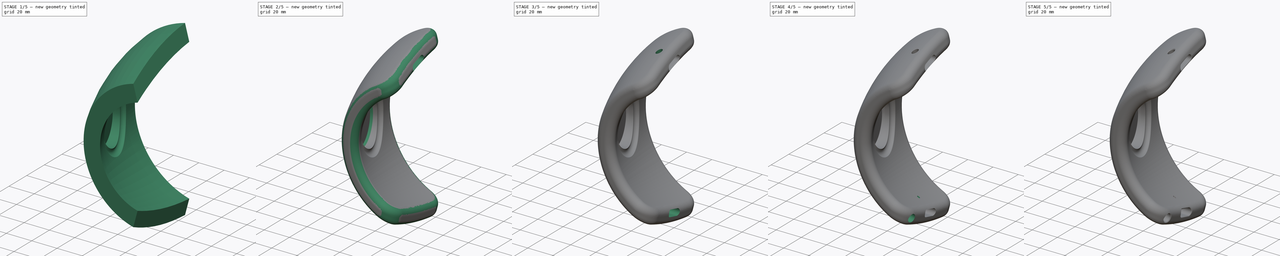
[diagram: build sequence overview — one tinted view per stage of 5, left to right]
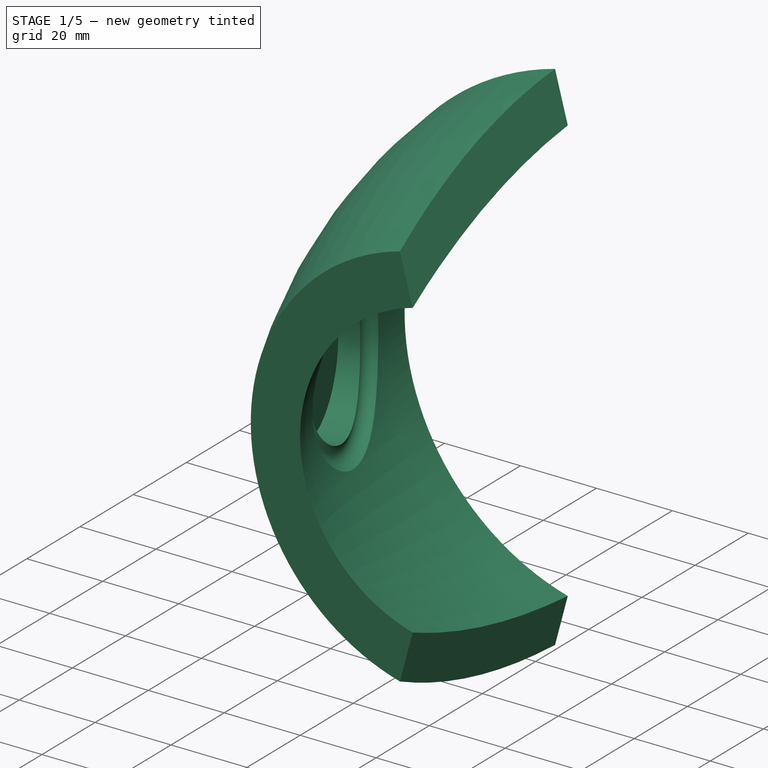
[diagram: stage 1 of 5 — iso view after this stage's code; geometry added in this stage tinted green]
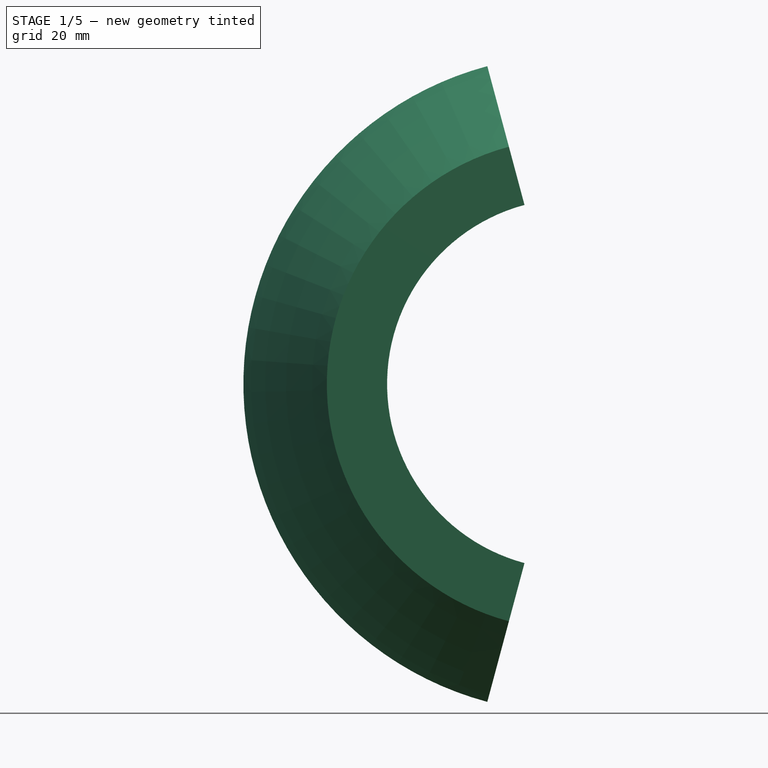
[diagram: stage 1 of 5 — front view after this stage's code; geometry added in this stage tinted green]
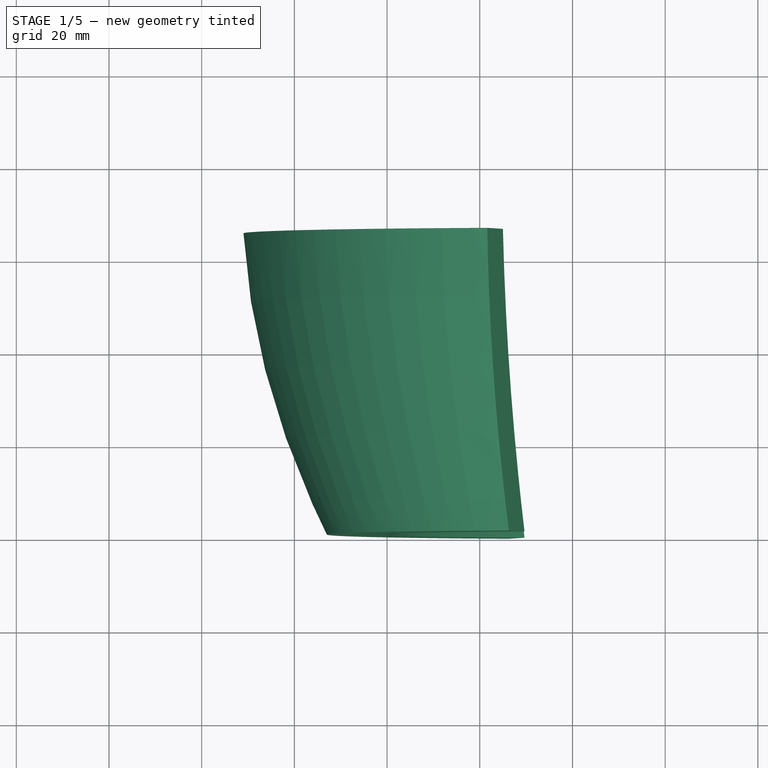
[diagram: stage 1 of 5 — top view after this stage's code; geometry added in this stage tinted green]
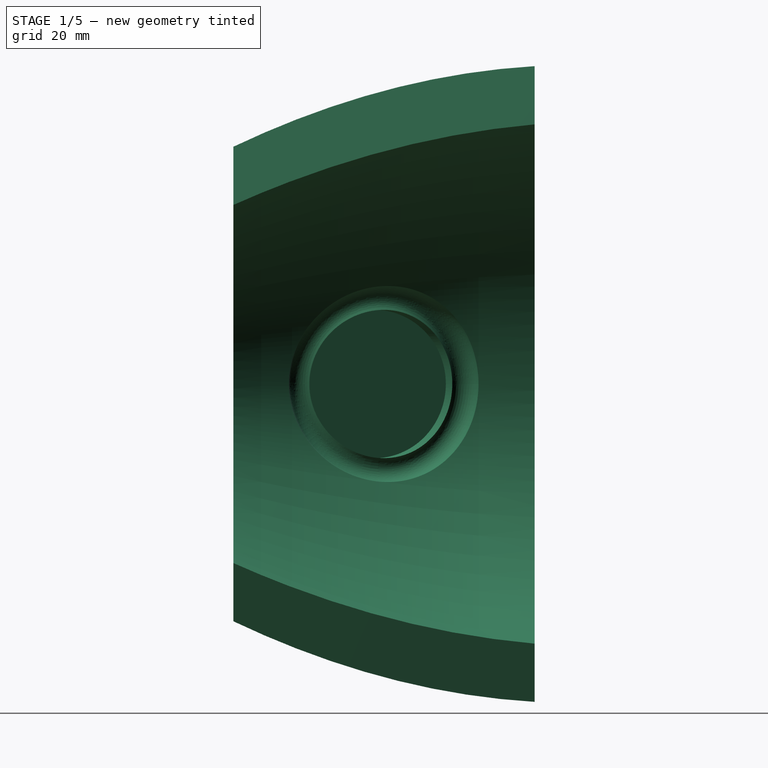
[diagram: stage 1 of 5 — right view after this stage's code; geometry added in this stage tinted green]
FCSTD DOCUMENT  (FreeCAD 0.17R13541 (Git))
Label: left_patch_v4_circularSeal
License: All rights reserved
LicenseURL: http://en.wikipedia.org/wiki/All_rights_reserved
objects: Sketcher::SketchObject×14, PartDesign::Pocket×7, PartDesign::Plane×5, PartDesign::Fillet×4, PartDesign::Mirrored×3, PartDesign::Chamfer×2, PartDesign::Revolution×1, PartDesign::Line×1, PartDesign::Pad×1, PartDesign::SubtractivePipe×1, PartDesign::SubtractiveLoft×1, PartDesign::Body×1
note: 52 computed .brp shape members not serialized (recipe doc carries the construction recipe); baked Part::Feature solids carry a one-line shape summary decoded from their .brp

FEATURE [Sketcher::SketchObject] Sketch
  MapMode = 5
  Support = -> [XY_Plane]
  sketch-geometry (14):
    g0: LineSegment StartX=-53 StartY=0 StartZ=0 EndX=-40 EndY=0 EndZ=0
    g1: LineSegment StartX=-71 StartY=65 StartZ=0 EndX=-58 EndY=65 EndZ=0
    g2: Circle [constr] CenterX=-71 CenterY=65 CenterZ=0 NormalX=0 NormalY=0 NormalZ=1 AngleXU=0 Radius=1
    g3: Circle [constr] CenterX=-69 CenterY=32.5 CenterZ=0 NormalX=0 NormalY=0 NormalZ=1 AngleXU=0 Radius=1
    g4: Circle [constr] CenterX=-53 CenterY=0 CenterZ=0 NormalX=0 NormalY=0 NormalZ=1 AngleXU=0 Radius=1
    g5: BSplineCurve PolesCount=3 KnotsCount=2 Degree=2 IsPeriodic=0
    g6: GeomPoint [constr] X=-71 Y=65 Z=0
    g7: GeomPoint [constr] X=-53 Y=0 Z=0
    g8: Circle [constr] CenterX=-58 CenterY=65 CenterZ=0 NormalX=0 NormalY=0 NormalZ=1 AngleXU=0 Radius=1
    g9: Circle [constr] CenterX=-55 CenterY=32.5 CenterZ=0 NormalX=0 NormalY=0 NormalZ=1 AngleXU=0 Radius=1
    g10: Circle [constr] CenterX=-40 CenterY=0 CenterZ=0 NormalX=0 NormalY=0 NormalZ=1 AngleXU=0 Radius=1
    g11: BSplineCurve PolesCount=3 KnotsCount=2 Degree=2 IsPeriodic=0
    g12: GeomPoint [constr] X=-58 Y=65 Z=0
    g13: GeomPoint [constr] X=-40 Y=0 Z=0
  constraints (32):
    c: Horizontal(g0)
    c: Horizontal(g1)
    c: Coincident(g2,g1)
    c: Radius(g2) = 1
    c: Equal(g2,g3)
    c: Equal(g2,g4)
    c: Coincident(g4,g0)
    c: InternalAlignment(g2,g5)
    c: InternalAlignment(g3,g5)
    c: InternalAlignment(g4,g5)
    c: InternalAlignment(g6,g5)
    c: InternalAlignment(g7,g5)
    c: Coincident(g8,g1)
    c: Radius(g8) = 1
    c: Equal(g8,g9)
    c: Equal(g8,g10)
    c: Coincident(g10,g0)
    c: InternalAlignment(g8,g11)
    c: InternalAlignment(g9,g11)
    c: InternalAlignment(g10,g11)
    c: InternalAlignment(g12,g11)
    c: InternalAlignment(g13,g11)
    c: DistanceX(g1,g1) = 13  'upper thickness'
    c: DistanceX(g0,g0) = 13  'lower thickness'
    c: DistanceY(g0,g1) = 65
    c: DistanceY(g0,g-1) = 0
    c: DistanceY(g0,g9) = 32.5
    c: DistanceY(g0,g3) = 32.5
    c: DistanceX(g0,g-1) = 40  'lower radius'
    c: DistanceX(g3,g9) = 14  'middle thickness'
    c: DistanceX(g9,g0) = 15  'middle radius difference'
    c: DistanceX(g1,g0) = 18  'upper radius difference'
FEATURE [PartDesign::Revolution] Revolution
  Angle = 150
  Axis = (0,1,0)
  Base = (0,0,0)
  Midplane = true
  Profile = -> Sketch
  ReferenceAxis = -> Sketch [V_Axis]
FEATURE [PartDesign::Line] DatumLine
  AttacherType = Attacher::AttachEngineLine
  AttachmentOffset = pos=(47,0,0) rot=(0,1,0;0.279253rad)
  MapMode = 29
  Placement = pos=(0,47,0) rot=(0.470251,0.624045,0.624045;2.26246rad)
  Support = -> [X_Axis]
FEATURE [PartDesign::Plane] DatumPlane001
  AttachmentOffset = pos=(0,0,-45) rot=(0,0,1;0rad)
  MapMode = 2
  Placement = pos=(-43.2568,34.5963,0) rot=(0.470251,0.624045,0.624045;2.26246rad)
  Support = -> [DatumLine]
FEATURE [Sketcher::SketchObject] Sketch017
  MapMode = 5
  Placement = pos=(-43.2568,34.5963,0) rot=(0.470251,0.624045,0.624045;2.26246rad)
  Support = -> [DatumPlane001]
  sketch-geometry (1):
    g0: Circle CenterX=0 CenterY=0 CenterZ=0 NormalX=0 NormalY=0 NormalZ=1 AngleXU=0 Radius=19
  constraints (2):
    c: Coincident(g0,g-1)
    c: Radius(g0) = 19
FEATURE [PartDesign::Pad] Pad001
  BaseFeature = -> Revolution
  Length = 20
  Length2 = 100
  Profile = -> Sketch017
  Type = 3
  UpToFace = -> Revolution [Face3]
FEATURE [Sketcher::SketchObject] Sketch018
  ExternalGeometry = -> [DatumLine]
  MapMode = 5
  Support = -> [XY_Plane]
  sketch-geometry (12):
    g0: LineSegment [constr] StartX=-50.16 StartY=32.6169 StartZ=0 EndX=-44.5921 EndY=13.1994 EndZ=0
    g1: LineSegment [constr] StartX=-44.5921 StartY=13.1994 StartZ=0 EndX=-46.034 EndY=12.7859 EndZ=0
    g2: LineSegment [constr] StartX=-46.034 StartY=12.7859 StartZ=0 EndX=-50.1686 EndY=27.2048 EndZ=0
    g3: LineSegment [constr] StartX=-50.1686 StartY=27.2048 StartZ=0 EndX=-51.1298 EndY=26.9292 EndZ=0
    g4: LineSegment [constr] StartX=-51.1298 StartY=26.9292 StartZ=0 EndX=-51.6271 EndY=28.6634 EndZ=0
    g5: LineSegment [constr] StartX=-51.6271 StartY=28.6634 StartZ=0 EndX=-41.0277 EndY=31.7028 EndZ=0
    g6: LineSegment [constr] StartX=-41.0277 StartY=31.7028 StartZ=0 EndX=-36.3958 EndY=15.5496 EndZ=0
    g7: LineSegment [constr] StartX=-36.3958 StartY=15.5496 StartZ=0 EndX=-44.5921 EndY=13.1994 EndZ=0
    g8: ArcOfCircle CenterX=-45.6792 CenterY=15.1763 CenterZ=0 NormalX=0 NormalY=0 NormalZ=1 AngleXU=0 Radius=3.25 StartAngle=1.85005 EndAngle=4.99164
    g9: LineSegment StartX=-46.575 StartY=18.3004 StartZ=0 EndX=-32.1561 EndY=22.435 EndZ=0
    g10: LineSegment StartX=-32.1561 StartY=22.435 StartZ=0 EndX=-30.3644 EndY=16.1868 EndZ=0
    g11: LineSegment StartX=-30.3644 StartY=16.1868 StartZ=0 EndX=-44.7833 EndY=12.0522 EndZ=0
  constraints (33):
    c: PointOnObject(g0,g-3)
    c: Perpendicular(g-3,g0)
    c: Distance(g0) = 20.2
    c: Coincident(g0,g1)
    c: Coincident(g1,g2)
    c: Coincident(g2,g3)
    c: Coincident(g3,g4)
    c: Coincident(g4,g5)
    c: Coincident(g5,g6)
    c: Coincident(g6,g7)
    c: Coincident(g7,g1)
    c: Perpendicular(g0,g1)
    c: Perpendicular(g0,g3)
    c: Perpendicular(g0,g5)
    c: Perpendicular(g0,g7)
    c: Parallel(g6,g0)
    c: Parallel(g2,g0)
    c: Parallel(g4,g0)
    c: Distance(g1) = 1.5
    c: Distance(g2) = 15
    c: Distance(g3) = 1
    c: DistanceX(g0) = -50.16
    c: Radius(g8) = 3.25  'circular seal diameter'
    c: Distance(g8,g2) = 1  'circular seal dept'
    c: Distance(g8,g-3) = 18  'ring diameter'
    c: Coincident(g9,g10)
    c: Coincident(g10,g11)
    c: Tangent(g8,g9) = 1.5708
    c: Tangent(g8,g11) = 1.5708
    c: Parallel(g9,g-3)
    c: Parallel(g11,g-3)
    c: Distance(g11) = 15
    c: Perpendicular(g-3,g10)
FEATURE [PartDesign::SubtractivePipe] SubtractivePipe
  AuxilleryCurvelinear = true
  AuxillerySpineTangent = false
  BaseFeature = -> Pad001
  Binormal = (0,0,0)
  Mode = 0
  Profile = -> Sketch018
  Refine = true
  Spine = -> Pad001 [Edge13,Edge14]
  SpineTangent = false
  Transformation = 0
  Transition = 0
FEATURE [Sketcher::SketchObject] Sketch019
  MapMode = 5
  Placement = pos=(-43.2568,34.5963,0) rot=(0.470251,0.624045,0.624045;2.26246rad)
  Support = -> [DatumPlane001]
  sketch-geometry (1):
    g0: Circle CenterX=0 CenterY=0 CenterZ=0 NormalX=0 NormalY=0 NormalZ=1 AngleXU=0 Radius=16
  constraints (2):
    c: Coincident(g0,g-1)
    c: Radius(g0) = 16
FEATURE [PartDesign::Pocket] Pocket007
  BaseFeature = -> SubtractivePipe
  Length = 30
  Length2 = 100
  Midplane = true
  Profile = -> Sketch019
  Type = 0
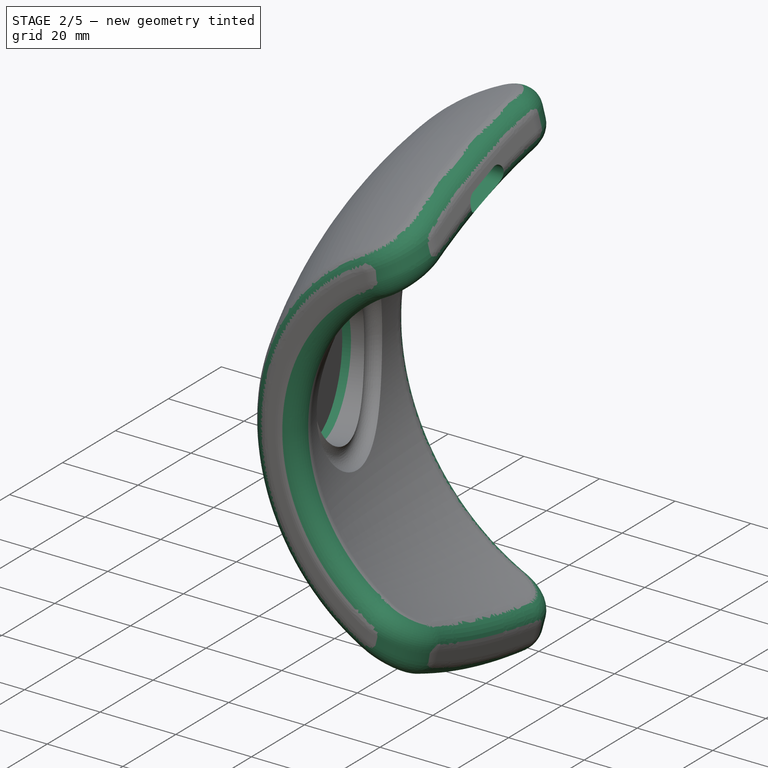
[diagram: stage 2 of 5 — iso view after this stage's code; geometry added in this stage tinted green]
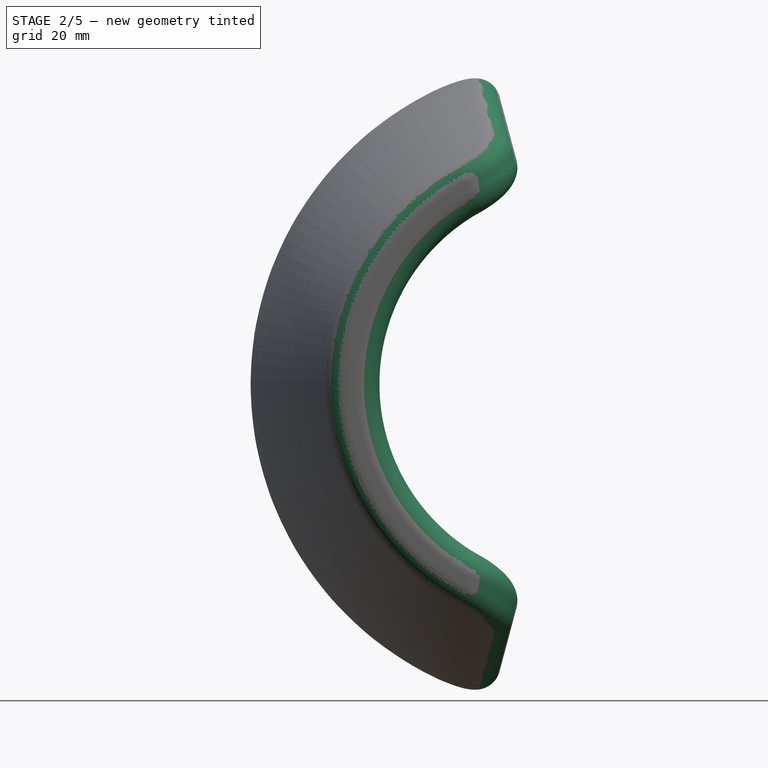
[diagram: stage 2 of 5 — front view after this stage's code; geometry added in this stage tinted green]
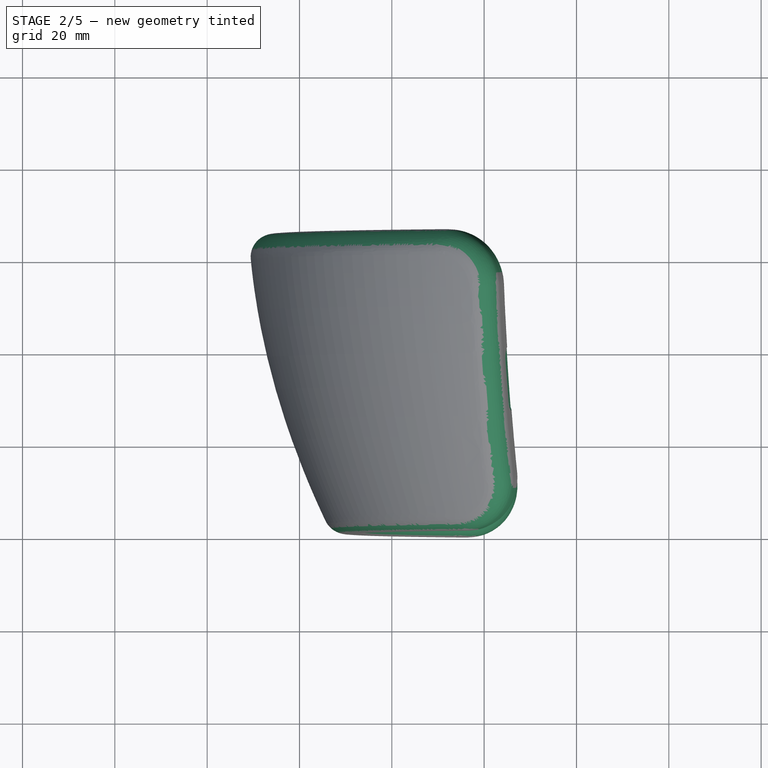
[diagram: stage 2 of 5 — top view after this stage's code; geometry added in this stage tinted green]
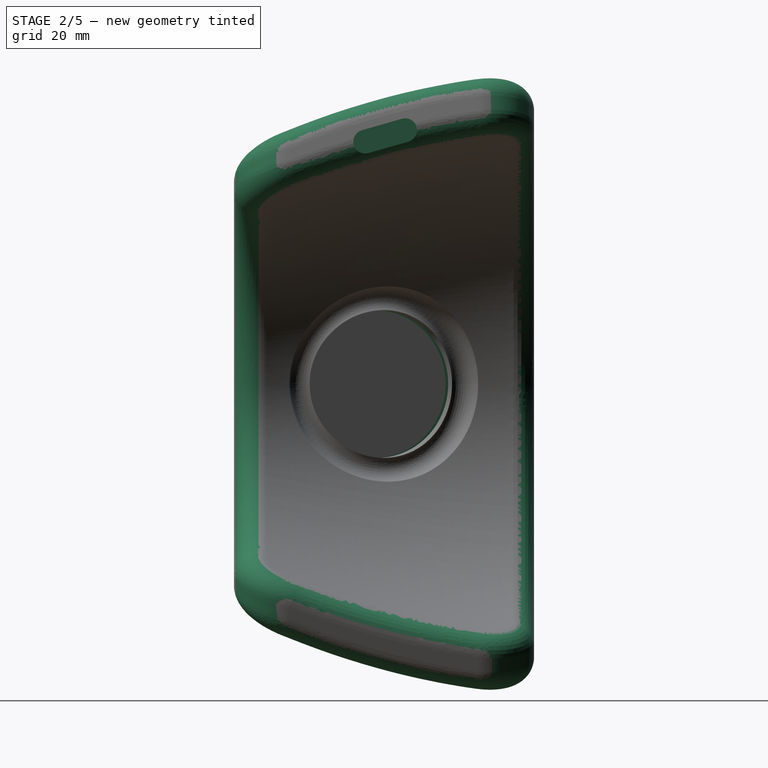
[diagram: stage 2 of 5 — right view after this stage's code; geometry added in this stage tinted green]
FEATURE [Sketcher::SketchObject] Sketch020
  ExternalGeometry = -> [DatumLine]
  MapMode = 5
  Placement = pos=(-45.2226,-12.9674,0) rot=(0.470251,0.624045,0.624045;2.26246rad)
  Support = -> [Pocket007]
  sketch-geometry (2):
    g0: Circle CenterX=45.1793 CenterY=0 CenterZ=0 NormalX=0 NormalY=0 NormalZ=1 AngleXU=0 Radius=16
    g1: Circle CenterX=45.1793 CenterY=0 CenterZ=0 NormalX=0 NormalY=0 NormalZ=1 AngleXU=0 Radius=18
  constraints (4):
    c: Coincident(g0,g-3)
    c: Coincident(g1,g0)
    c: Radius(g0) = 16
    c: Radius(g1) = 18
FEATURE [PartDesign::Pocket] Pocket008
  BaseFeature = -> Pocket007
  Length = 2
  Length2 = 2
  Profile = -> Sketch020
  Type = 4
FEATURE [PartDesign::Plane] DatumPlane
  AttachmentOffset = pos=(0,0,-9) rot=(0,0,1;0rad)
  MapMode = 5
  Placement = pos=(-9,1e-12,-1e-12) rot=(0.57735,0.57735,0.57735;2.0944rad)
  Support = -> [YZ_Plane]
FEATURE [Sketcher::SketchObject] Sketch003
  MapMode = 5
  Placement = pos=(-9,1e-12,-1e-12) rot=(0.57735,0.57735,0.57735;2.0944rad)
  Support = -> [DatumPlane]
  sketch-geometry (4):
    g0: ArcOfCircle CenterX=28.43 CenterY=52.5 CenterZ=0 NormalX=0 NormalY=0 NormalZ=1 AngleXU=0 Radius=2.575 StartAngle=1.85005 EndAngle=4.99164
    g1: ArcOfCircle CenterX=37.0814 CenterY=54.9807 CenterZ=0 NormalX=0 NormalY=0 NormalZ=1 AngleXU=0 Radius=2.575 StartAngle=4.99164 EndAngle=8.13323
    g2: LineSegment StartX=29.1398 StartY=50.0248 StartZ=0 EndX=37.7911 EndY=52.5055 EndZ=0
    g3: LineSegment StartX=27.7202 StartY=54.9752 StartZ=0 EndX=36.3716 EndY=57.456 EndZ=0
  constraints (10):
    c: Tangent(g0,g3) = 1.5708
    c: Tangent(g0,g2) = -1.5708
    c: Tangent(g2,g1) = -1.5708
    c: Tangent(g3,g1) = 1.5708
    c: Angle(g3,g-1) = -0.279253
    c: Distance(g0,g1) = 9
    c: Distance(g1,g1) = 5.15
    c: Parallel(g3,g2)
    c: DistanceX(g0) = 28.43
    c: DistanceY(g-1,g0) = 52.5
FEATURE [PartDesign::Plane] DatumPlane002
  AttachmentOffset = pos=(0,0,-18) rot=(0,0,1;0rad)
  MapMode = 4
  Placement = pos=(4.96147,29.6973,0) rot=(-0.515639,-0.684276,-0.515639;1.9414rad)
  Support = -> [DatumLine]
FEATURE [Sketcher::SketchObject] Sketch027
  MapMode = 5
  Placement = pos=(4.96147,29.6973,0) rot=(-0.515639,-0.684276,-0.515639;1.9414rad)
  Support = -> [DatumPlane002]
  sketch-geometry (1):
    g0: Circle CenterX=0 CenterY=-60.4737 CenterZ=0 NormalX=0 NormalY=0 NormalZ=1 AngleXU=0 Radius=1.5
  constraints (2):
    c: PointOnObject(g0,g-2)
    c: Radius(g0) = 1.5
FEATURE [PartDesign::Plane] DatumPlane003
  AttachmentOffset = pos=(0,0,0) rot=(0,-1,0;0.698132rad)
  MapMode = 5
  Placement = pos=(0,0,0) rot=(0,-1,0;0.698132rad)
  Support = -> [XY_Plane]
FEATURE [Sketcher::SketchObject] Sketch028
  MapMode = 5
  Placement = pos=(0,0,0) rot=(0,-1,0;0.698132rad)
  Support = -> [DatumPlane003]
  sketch-geometry (1):
    g0: Circle CenterX=-50 CenterY=8.5 CenterZ=0 NormalX=0 NormalY=0 NormalZ=1 AngleXU=0 Radius=1.5
  constraints (3):
    c: Radius(g0) = 1.5
    c: DistanceY(g-1,g0) = 8.5
    c: DistanceX(g0,g-1) = 50
FEATURE [PartDesign::Plane] DatumPlane004
  AttachmentOffset = pos=(0,0,4.5) rot=(-0.95157,-0.300144,-0.06654;0.457789rad)
  MapMode = 5
  Placement = pos=(0,0,4.5) rot=(-0.95157,-0.300144,-0.06654;0.457789rad)
  Support = -> [XY_Plane]
FEATURE [Sketcher::SketchObject] Sketch030
  MapMode = 5
  Placement = pos=(0,0,4.5) rot=(-0.95157,-0.300144,-0.06654;0.457789rad)
  Support = -> [DatumPlane004]
  sketch-geometry (1):
    g0: Circle CenterX=-49 CenterY=7 CenterZ=0 NormalX=0 NormalY=0 NormalZ=1 AngleXU=0 Radius=1.5
  constraints (3):
    c: Radius(g0) = 1.5
    c: DistanceY(g-1,g0) = 7
    c: DistanceX(g0,g-1) = 49
FEATURE [PartDesign::Fillet] Fillet020
  Base = -> Pocket008 [Edge7,Edge6,Edge9,Edge10]
  BaseFeature = -> Pocket008
  Radius = 12
FEATURE [PartDesign::Fillet] Fillet  label="Vorderkannte innen"
  Base = -> Fillet020 [Edge11,Edge1]
  BaseFeature = -> Fillet020
  Radius = 5
FEATURE [PartDesign::Pocket] Pocket  label="Kabelzug"
  BaseFeature = -> Fillet
  Length = 22
  Length2 = 100
  Profile = -> Sketch003
  Type = 0
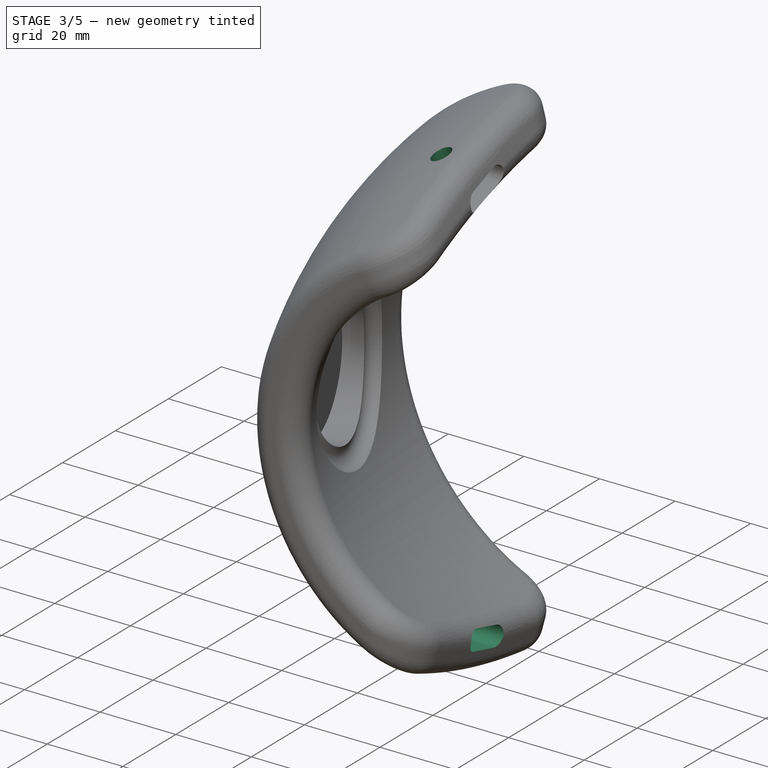
[diagram: stage 3 of 5 — iso view after this stage's code; geometry added in this stage tinted green]
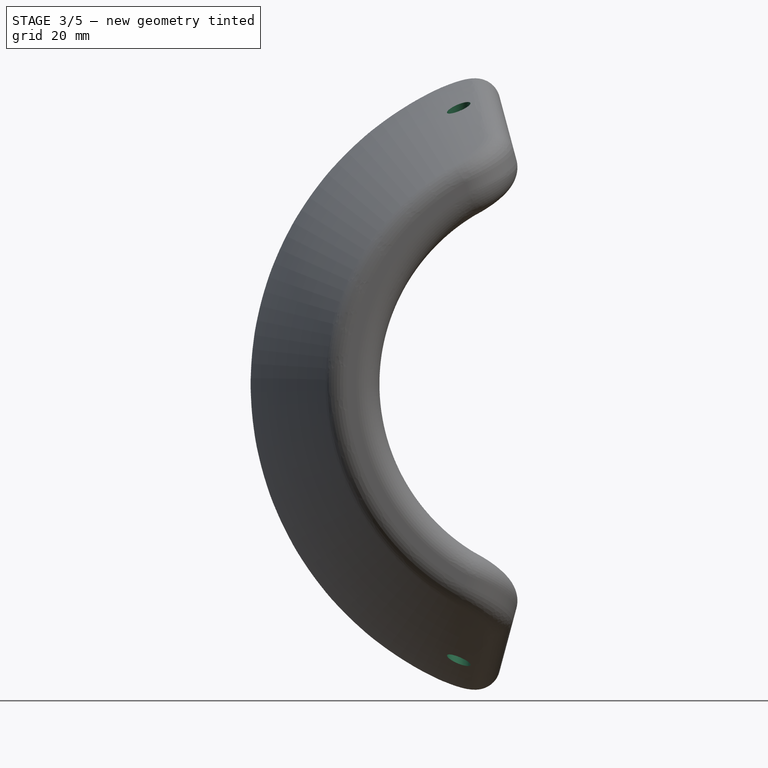
[diagram: stage 3 of 5 — front view after this stage's code; geometry added in this stage tinted green]
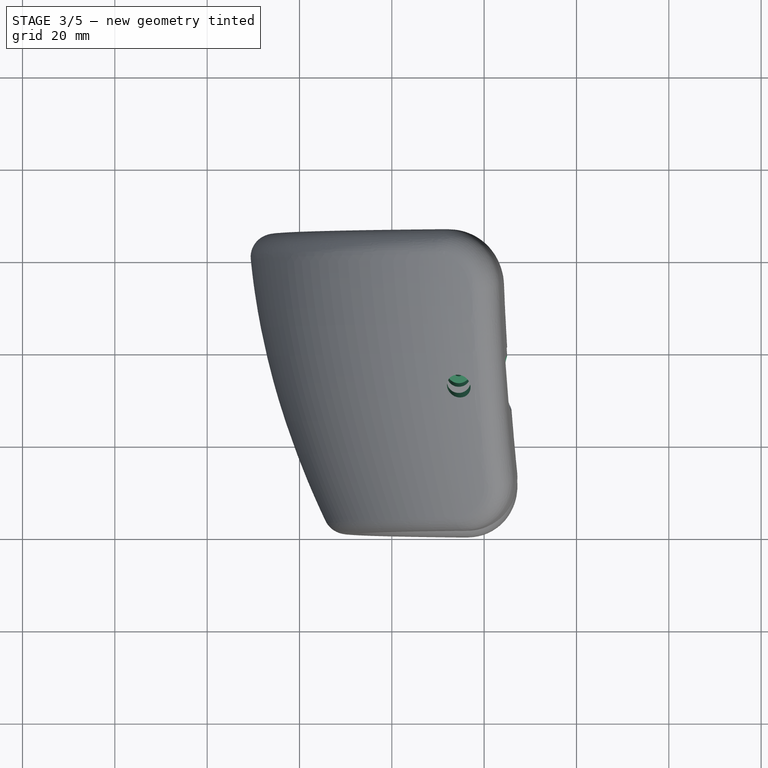
[diagram: stage 3 of 5 — top view after this stage's code; geometry added in this stage tinted green]
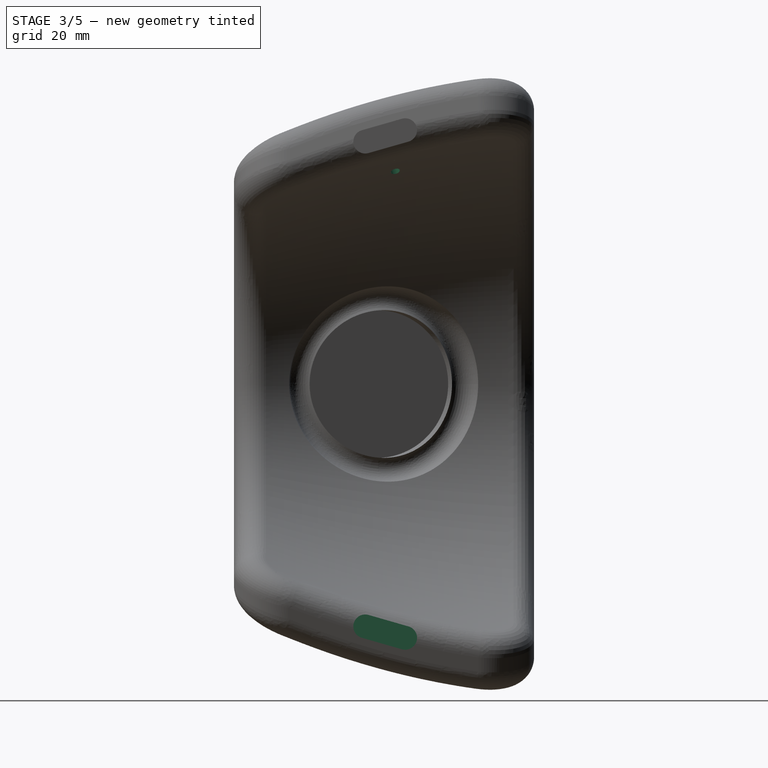
[diagram: stage 3 of 5 — right view after this stage's code; geometry added in this stage tinted green]
FEATURE [Sketcher::SketchObject] Sketch022
  ExternalGeometry = -> [Pocket]
  MapMode = 5
  Placement = pos=(-6e-12,-11.0406,38.5032) rot=(1,0,0;0.279253rad)
  Support = -> [Pocket]
  sketch-geometry (1):
    g0: Circle CenterX=-25.5 CenterY=46.2996 CenterZ=0 NormalX=0 NormalY=0 NormalZ=1 AngleXU=0 Radius=2.55
  constraints (3):
    c: Radius(g0) = 2.55
    c: DistanceX(g-3,g0) = 5.5
    c: DistanceY(g0,g-3) = 4.5
FEATURE [PartDesign::Pocket] Pocket010  label="Bolzen"
  BaseFeature = -> Pocket
  Length = 3
  Length2 = 15
  Profile = -> Sketch022
  Refine = true
  Type = 4
FEATURE [Sketcher::SketchObject] Sketch023
  ExternalGeometry = -> [Pocket010]
  MapMode = 5
  Placement = pos=(-5e-12,-10.2137,35.6194) rot=(1,0,0;0.279253rad)
  Support = -> [Pocket010]
  sketch-geometry (1):
    g0: Circle CenterX=-25.5 CenterY=46.2996 CenterZ=0 NormalX=0 NormalY=0 NormalZ=1 AngleXU=0 Radius=1
  constraints (2):
    c: Coincident(g0,g-3)
    c: Radius(g0) = 1
FEATURE [PartDesign::Pocket] Pocket011  label="Bolzen demontage"
  BaseFeature = -> Pocket010
  Length = 5
  Length2 = 100
  Profile = -> Sketch023
  Type = 2
FEATURE [PartDesign::Mirrored] Mirrored
  BaseFeature = -> Pocket011
  MirrorPlane = -> XY_Plane
  Originals = -> [Pocket]
FEATURE [PartDesign::Mirrored] Mirrored004
  BaseFeature = -> Mirrored
  MirrorPlane = -> XY_Plane
  Originals = -> [Pocket010]
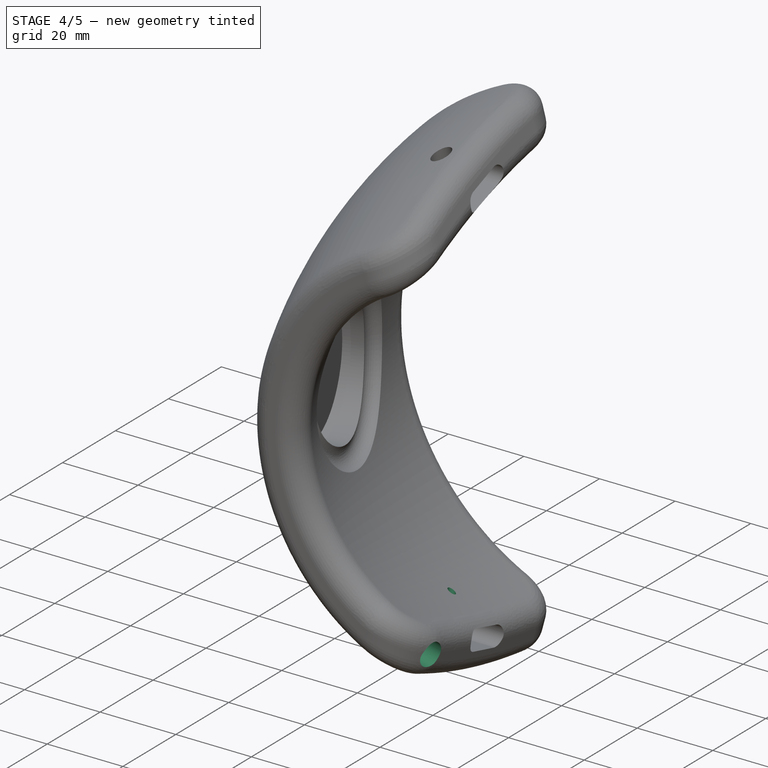
[diagram: stage 4 of 5 — iso view after this stage's code; geometry added in this stage tinted green]
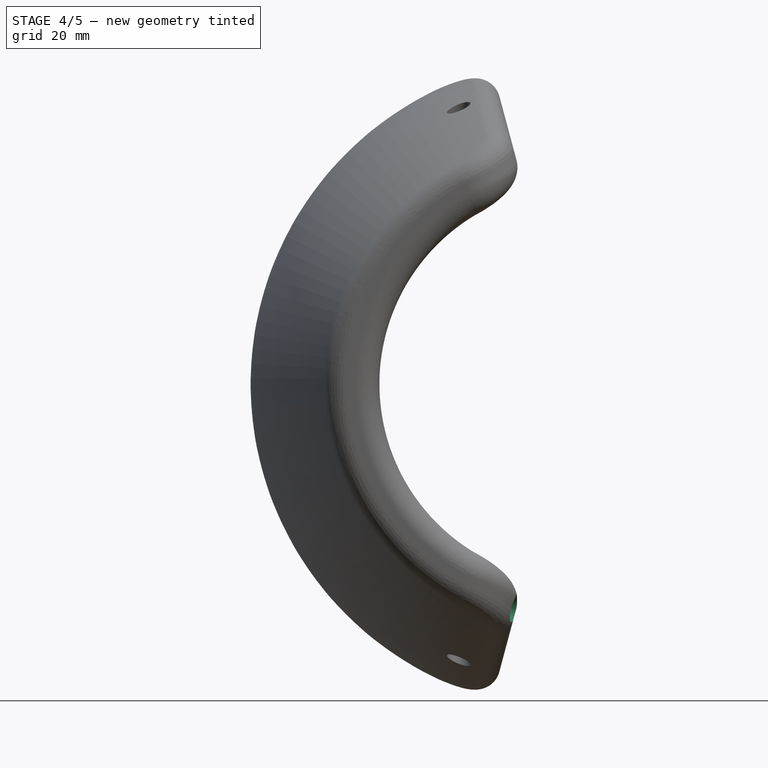
[diagram: stage 4 of 5 — front view after this stage's code; geometry added in this stage tinted green]
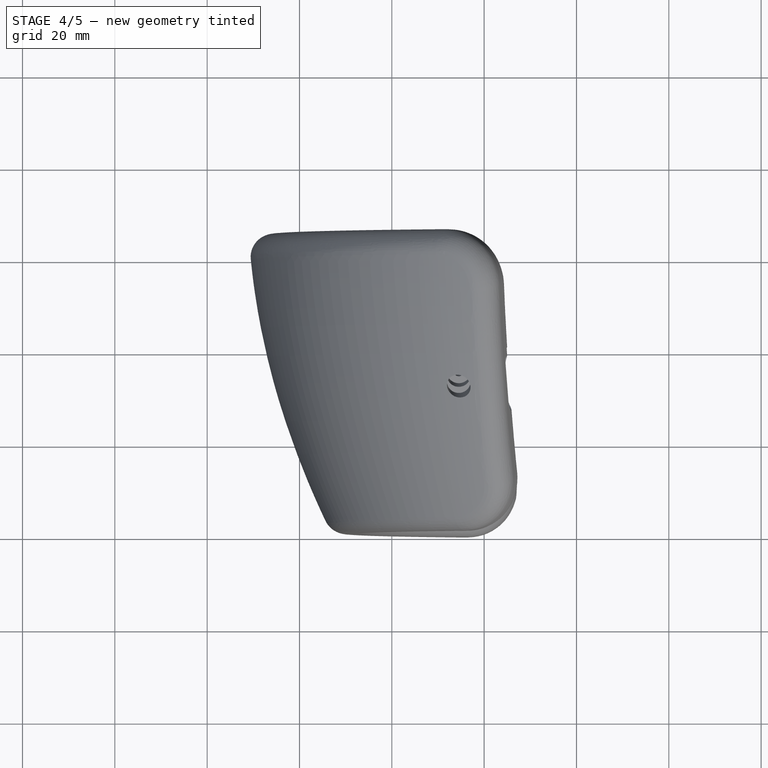
[diagram: stage 4 of 5 — top view after this stage's code; geometry added in this stage tinted green]
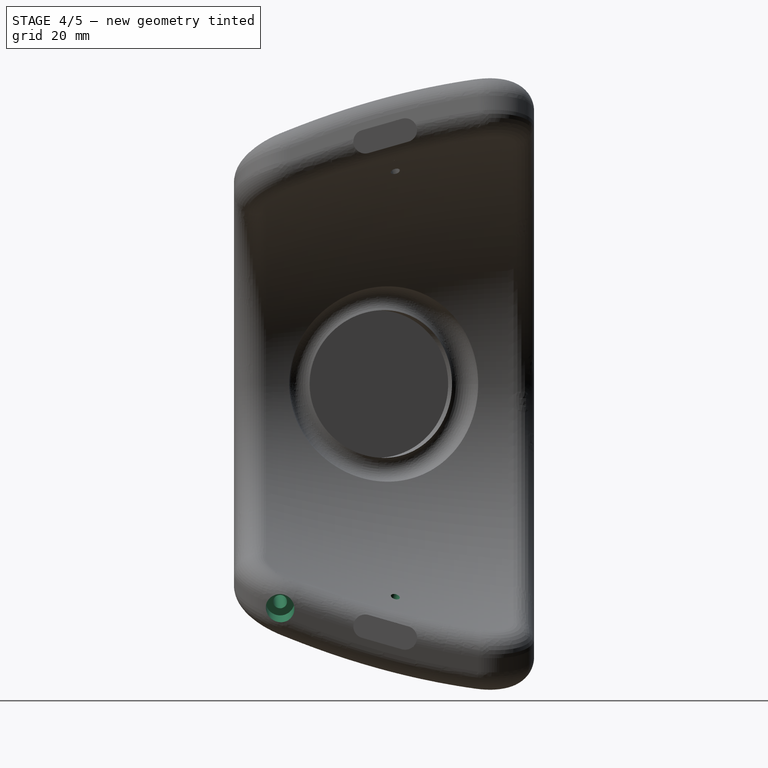
[diagram: stage 4 of 5 — right view after this stage's code; geometry added in this stage tinted green]
FEATURE [PartDesign::Mirrored] Mirrored005
  BaseFeature = -> Mirrored004
  MirrorPlane = -> XY_Plane
  Originals = -> [Pocket011]
FEATURE [Sketcher::SketchObject] Sketch025
  MapMode = 5
  Placement = pos=(0,0,0) rot=(0.621515,0.621515,0.476905;2.25159rad)
  Support = -> [Mirrored005]
  sketch-geometry (1):
    g0: Circle CenterX=10 CenterY=-50.4 CenterZ=0 NormalX=0 NormalY=0 NormalZ=1 AngleXU=0 Radius=3.1
  constraints (3):
    c: Radius(g0) = 3.1
    c: DistanceX(g0) = 10
    c: DistanceY(g0) = -50.4
FEATURE [PartDesign::Pocket] Pocket012
  BaseFeature = -> Mirrored005
  Length = 6
  Length2 = 100
  Profile = -> Sketch025
  Type = 0
FEATURE [PartDesign::Pocket] Pocket013
  BaseFeature = -> Pocket012
  Length = 3
  Length2 = 0.5
  Profile = -> Sketch027
  Type = 4
FEATURE [Sketcher::SketchObject] Sketch029
  ExternalGeometry = -> [Pocket013]
  MapMode = 5
  Placement = pos=(-6.66472,23.2426,0) rot=(-0.09889,0.703641,0.703641;3.33873rad)
  Support = -> [Pocket013]
  sketch-geometry (1):
    g0: Circle CenterX=47.5188 CenterY=0 CenterZ=0 NormalX=0 NormalY=0 NormalZ=1 AngleXU=0 Radius=1.5
  constraints (2):
    c: Coincident(g0,g-3)
    c: Radius(g0) = 1.5
FEATURE [Sketcher::SketchObject] Sketch031  label="Sketch032"
  ExternalGeometry = -> [Pocket013]
  MapMode = 5
  Placement = pos=(-5.79555,0,1.55291) rot=(0.621515,0.621515,0.476905;2.25159rad)
  Support = -> [Pocket013]
  sketch-geometry (1):
    g0: Circle CenterX=10 CenterY=-50.4 CenterZ=0 NormalX=0 NormalY=0 NormalZ=1 AngleXU=0 Radius=1.5
  constraints (2):
    c: Coincident(g0,g-3)
    c: Radius(g0) = 1.5
FEATURE [PartDesign::SubtractiveLoft] SubtractiveLoft
  BaseFeature = -> Pocket013
  Closed = false
  Profile = -> Sketch029
  Refine = true
  Ruled = true
  Sections = -> [Sketch030,Sketch028,Sketch031]
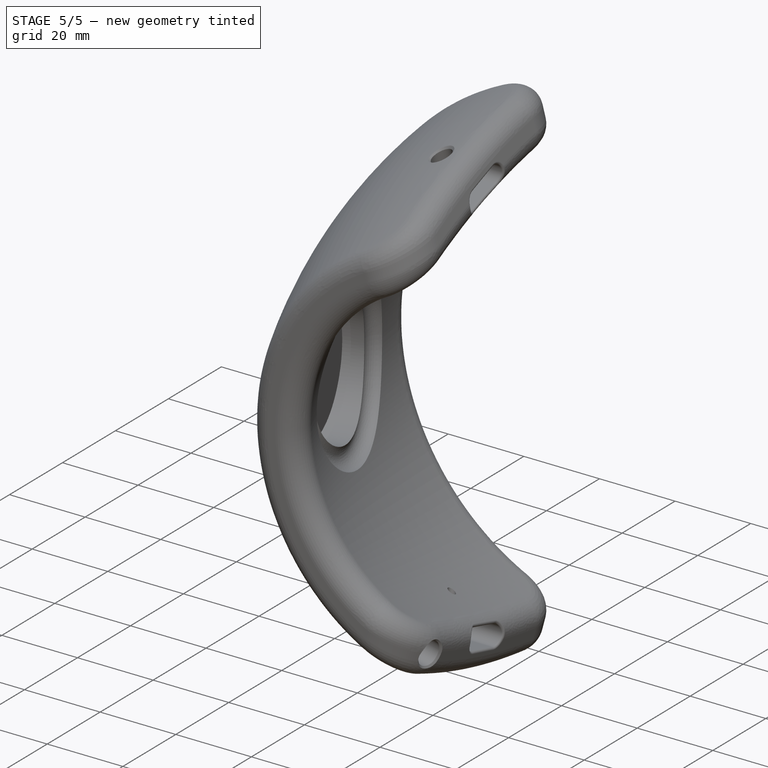
[diagram: stage 5 of 5 — iso view after this stage's code; geometry added in this stage tinted green]
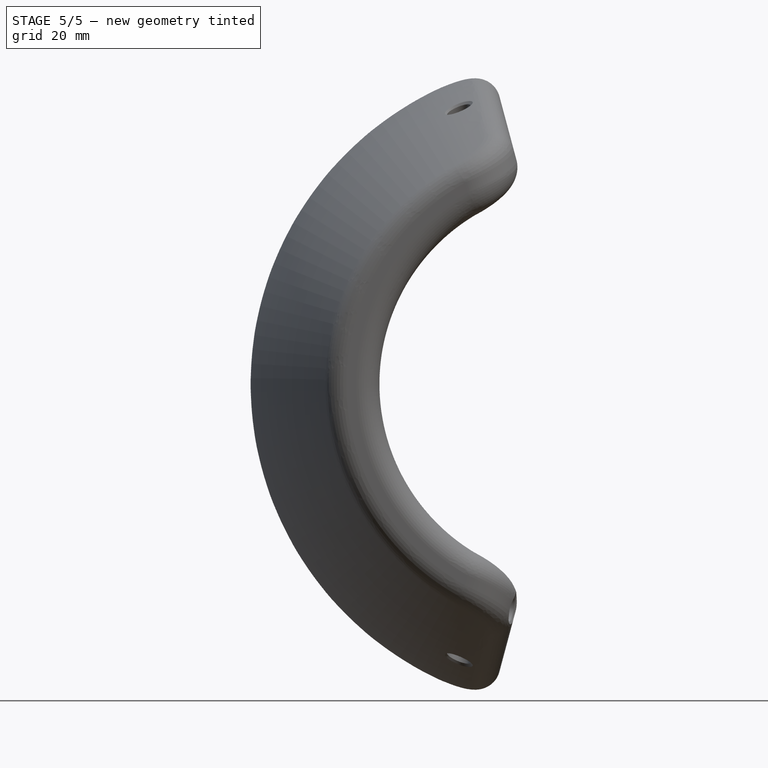
[diagram: stage 5 of 5 — front view after this stage's code; geometry added in this stage tinted green]
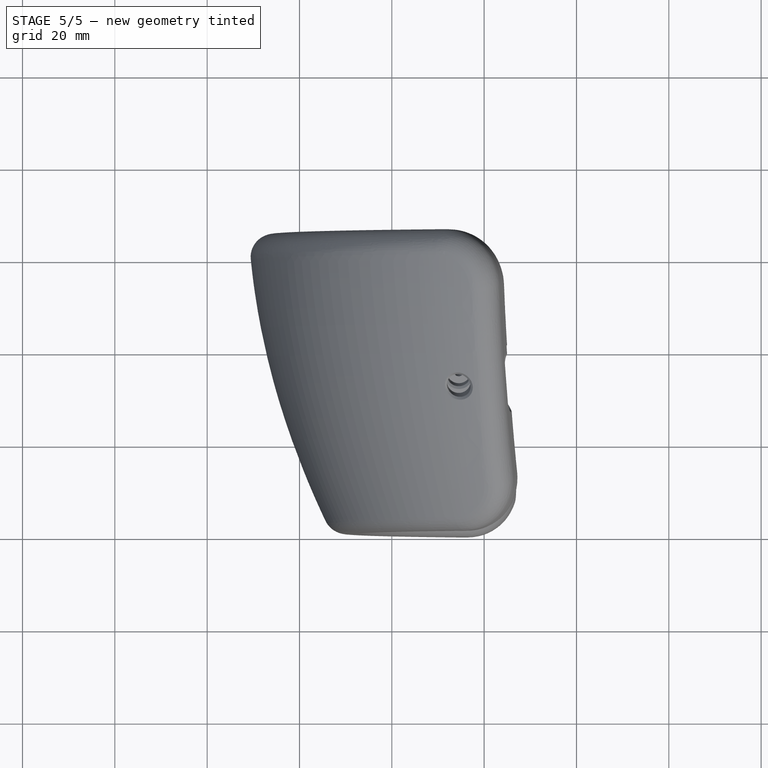
[diagram: stage 5 of 5 — top view after this stage's code; geometry added in this stage tinted green]
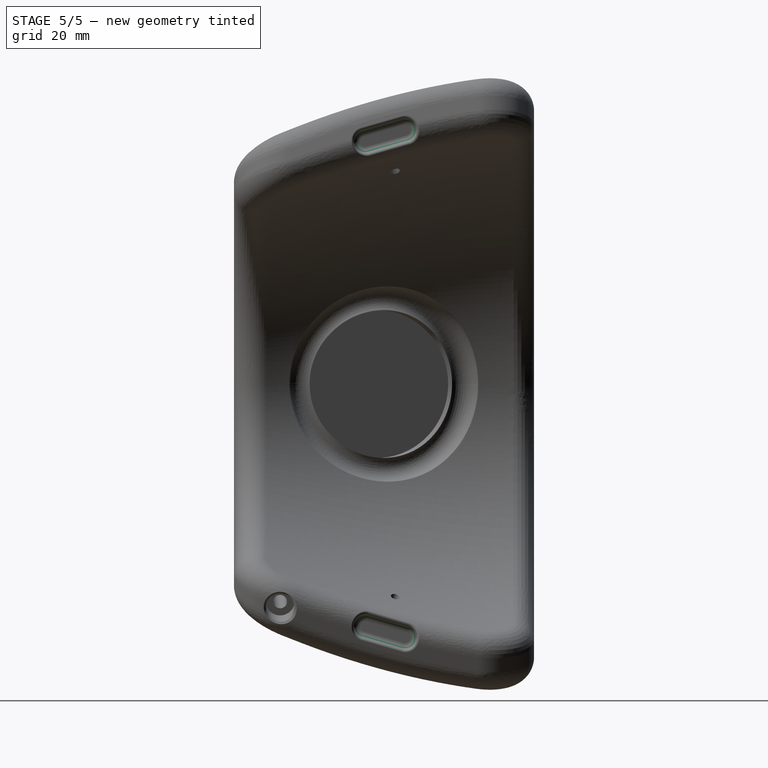
[diagram: stage 5 of 5 — right view after this stage's code; geometry added in this stage tinted green]
FEATURE [PartDesign::Chamfer] Chamfer  label="Vacuum connector"
  Base = -> SubtractiveLoft [Edge57]
  BaseFeature = -> SubtractiveLoft
  Size = 0.5
FEATURE [PartDesign::Fillet] Fillet016  label="Bowden end face"
  Base = -> Chamfer [Face50,Face38]
  BaseFeature = -> Chamfer
  Radius = 1.5
FEATURE [PartDesign::Fillet] Fillet017  label="Bowden front edge"
  Base = -> Fillet016 [Edge3,Edge98]
  BaseFeature = -> Fillet016
  Radius = 0.5
FEATURE [PartDesign::Chamfer] Chamfer001  label="Bold edges"
  Base = -> Fillet017 [Edge96,Edge189,Edge49,Edge9]
  BaseFeature = -> Fillet017
  Size = 0.5
FEATURE [PartDesign::Body] Body
  Group = -> [Sketch,Revolution,DatumLine,DatumPlane001,Sketch017,Pad001,Sketch018,SubtractivePipe,Sketch019,Pocket007,Sketch020,Pocket008,Sketch003,Fillet020,Fillet,DatumPlane,Pocket,Sketch022,Pocket010,Sketch023,Pocket011,Mirrored,Mirrored004,Mirrored005,Sketch025,Pocket012,DatumPlane002,Sketch027,Pocket013,DatumPlane003,Sketch028,Sketch029,DatumPlane004,Sketch030,Sketch031,SubtractiveLoft,Chamfer,Fillet016,+2 more]
  Origin = -> Origin
  Tip = -> Fillet017
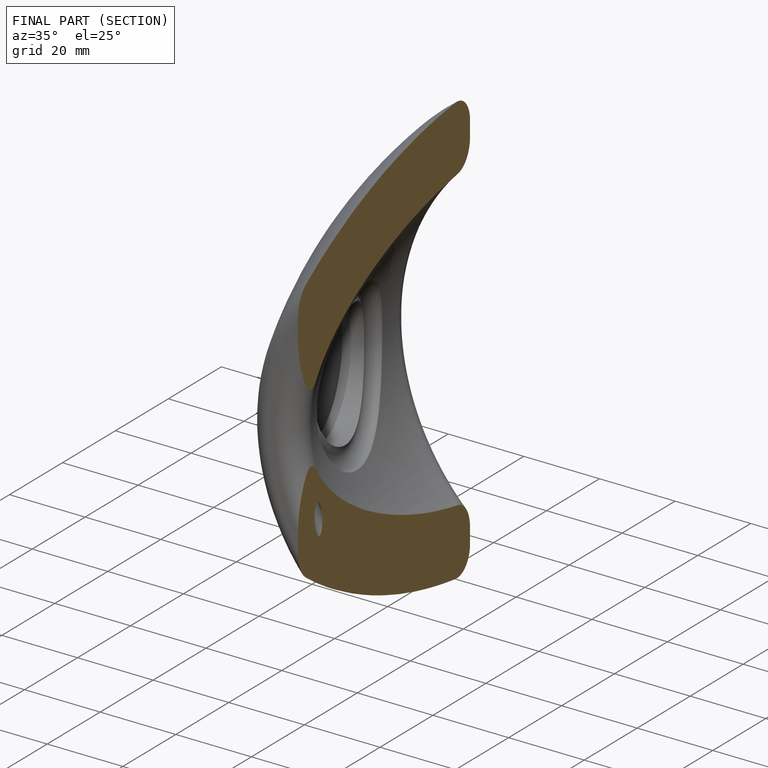
[diagram: finished part — half-section view (interior)]
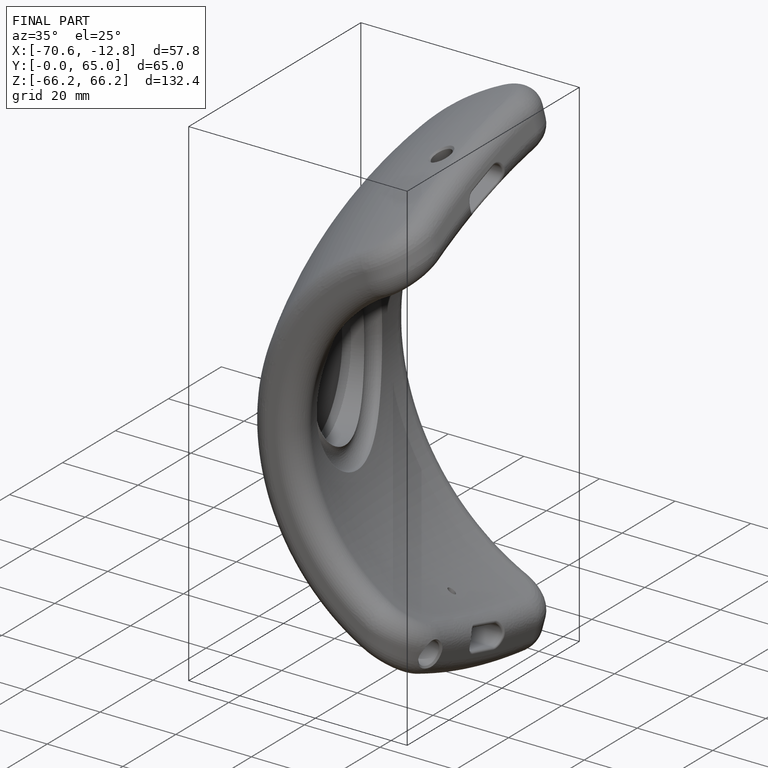
[diagram: finished part — iso view with bounding-box wireframe]
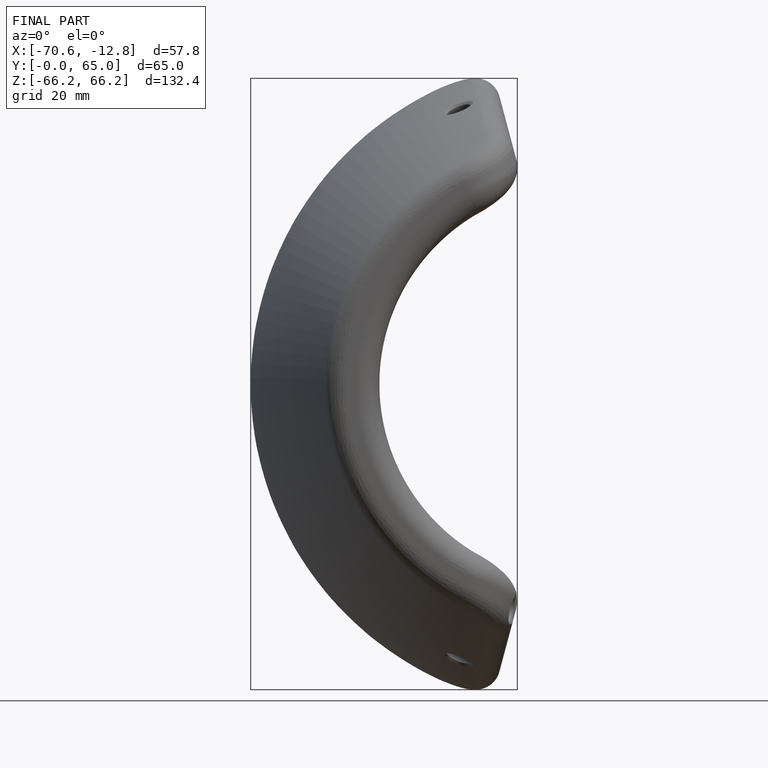
[diagram: finished part — front view with bounding-box wireframe]
